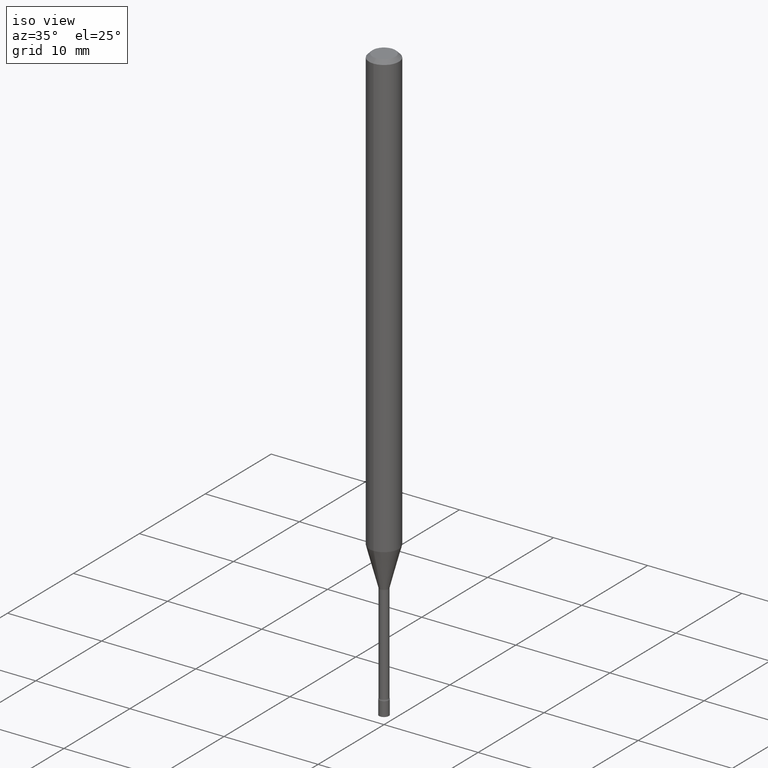
[diagram: clean part render]
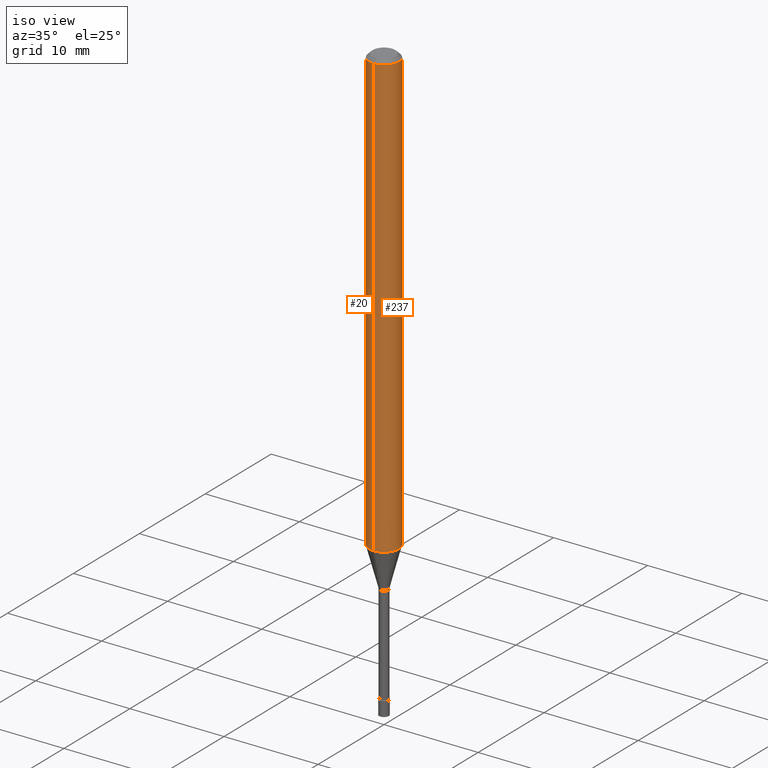
[diagram: same view with one multi-face feature highlighted, each face labeled with its STEP entity id]
A machine part, iso view. The highlighted faces form ONE feature: a constant-radius fillet chain: 2 tangent blend faces with common blend radius 1.5875 mm. The faces share edges in the B-rep.
Their STEP definitions:
[1] entity #20 (Cylinder):
#19 = CARTESIAN_POINT ( 'NONE',  ( -4.364351673553916201E-16, -0.06250000000000000000, 2.182215665883254699E-16 ) ) ;
#20 = ADVANCED_FACE ( 'NONE', ( #252 ), #133, .T. ) ;
#55 = AXIS2_PLACEMENT_3D ( 'NONE', #258, #253, #381 ) ;
#88 = ORIENTED_EDGE ( 'NONE', *, *, #248, .F. ) ;
#96 = LINE ( 'NONE', #284, #312 ) ;
#102 = DIRECTION ( 'NONE',  ( -2.445424306159104546E-29, 3.491545065413207519E-15, 1.000000000000000000 ) ) ;
#104 = VECTOR ( 'NONE', #494, 39.37007874015748143 ) ;
#133 = CYLINDRICAL_SURFACE ( 'NONE', #55, 0.06250000000000000000 ) ;
#147 = EDGE_LOOP ( 'NONE', ( #88, #304, #221, #279 ) ) ;
#150 = VERTEX_POINT ( 'NONE', #232 ) ;
#164 = DIRECTION ( 'NONE',  ( -2.445424306159104546E-29, 3.491545065413207519E-15, 1.000000000000000000 ) ) ;
#184 = AXIS2_PLACEMENT_3D ( 'NONE', #450, #294, #418 ) ;
#188 = VERTEX_POINT ( 'NONE', #269 ) ;
#196 = AXIS2_PLACEMENT_3D ( 'NONE', #416, #164, #205 ) ;
#205 = DIRECTION ( 'NONE',  ( -6.982962677686265922E-15, -1.000000000000000000, 3.483106191921935554E-15 ) ) ;
#217 = VERTEX_POINT ( 'NONE', #435 ) ;
#221 = ORIENTED_EDGE ( 'NONE', *, *, #448, .T. ) ;
#223 = CARTESIAN_POINT ( 'NONE',  ( 4.440892098501077785E-16, 0.06249999999999350520, -1.856909379709240637 ) ) ;
#232 = CARTESIAN_POINT ( 'NONE',  ( -4.364351673553912750E-16, -0.06250000000000005551, -0.01499999999999981209 ) ) ;
#248 = EDGE_CURVE ( 'NONE', #342, #188, #96, .T. ) ;
#252 = FACE_OUTER_BOUND ( 'NONE', #147, .T. ) ;
#253 = DIRECTION ( 'NONE',  ( -2.445424306159104546E-29, 3.491545065413207519E-15, 1.000000000000000000 ) ) ;
#258 = CARTESIAN_POINT ( 'NONE',  ( 0.000000000000000000, 0.000000000000000000, 0.000000000000000000 ) ) ;
#269 = CARTESIAN_POINT ( 'NONE',  ( 4.440892098501082715E-16, 0.06249999999999995143, -0.01500000000000024751 ) ) ;
#279 = ORIENTED_EDGE ( 'NONE', *, *, #451, .F. ) ;
#284 = CARTESIAN_POINT ( 'NONE',  ( 4.440892098500625669E-16, 0.06250000000000000000, -2.182215665883254699E-16 ) ) ;
#294 = DIRECTION ( 'NONE',  ( -2.445424306159104546E-29, 3.491545065413207519E-15, 1.000000000000000000 ) ) ;
#304 = ORIENTED_EDGE ( 'NONE', *, *, #395, .T. ) ;
#312 = VECTOR ( 'NONE', #102, 39.37007874015748143 ) ;
#342 = VERTEX_POINT ( 'NONE', #223 ) ;
#381 = DIRECTION ( 'NONE',  ( -6.982962677686265922E-15, -1.000000000000000000, 3.491545065413207519E-15 ) ) ;
#384 = LINE ( 'NONE', #19, #104 ) ;
#389 = CIRCLE ( 'NONE', #196, 0.06250000000000000000 ) ;
#395 = EDGE_CURVE ( 'NONE', #342, #217, #427, .T. ) ;
#416 = CARTESIAN_POINT ( 'NONE',  ( 3.668136459238664035E-31, -5.237317598119821879E-17, -0.01500000000000003067 ) ) ;
#418 = DIRECTION ( 'NONE',  ( -6.982962677686265922E-15, -1.000000000000000000, 4.370956789862821150E-15 ) ) ;
#427 = CIRCLE ( 'NONE', #184, 0.06250000000000000000 ) ;
#435 = CARTESIAN_POINT ( 'NONE',  ( -4.364351673553463099E-16, -0.06250000000000649480, -1.856909379709239971 ) ) ;
#448 = EDGE_CURVE ( 'NONE', #217, #150, #384, .T. ) ;
#450 = CARTESIAN_POINT ( 'NONE',  ( 4.540931331475802069E-29, -6.483482781643298717E-15, -1.856909379709240415 ) ) ;
#451 = EDGE_CURVE ( 'NONE', #188, #150, #389, .T. ) ;
#494 = DIRECTION ( 'NONE',  ( -2.445424306159104546E-29, 3.491545065413207519E-15, 1.000000000000000000 ) ) ;
[2] entity #237 (Cylinder):
#14 = AXIS2_PLACEMENT_3D ( 'NONE', #176, #213, #67 ) ;
#19 = CARTESIAN_POINT ( 'NONE',  ( -4.364351673553916201E-16, -0.06250000000000000000, 2.182215665883254699E-16 ) ) ;
#59 = EDGE_LOOP ( 'NONE', ( #464, #432, #259, #226 ) ) ;
#63 = CYLINDRICAL_SURFACE ( 'NONE', #14, 0.06250000000000000000 ) ;
#67 = DIRECTION ( 'NONE',  ( -6.982962677686265922E-15, -1.000000000000000000, 3.491545065413207519E-15 ) ) ;
#96 = LINE ( 'NONE', #284, #312 ) ;
#102 = DIRECTION ( 'NONE',  ( -2.445424306159104546E-29, 3.491545065413207519E-15, 1.000000000000000000 ) ) ;
#104 = VECTOR ( 'NONE', #494, 39.37007874015748143 ) ;
#114 = DIRECTION ( 'NONE',  ( -6.982962677686265922E-15, -1.000000000000000000, 3.483106191921935554E-15 ) ) ;
#118 = DIRECTION ( 'NONE',  ( -6.982962677686265922E-15, -1.000000000000000000, 4.370956789862821150E-15 ) ) ;
#150 = VERTEX_POINT ( 'NONE', #232 ) ;
#151 = CIRCLE ( 'NONE', #295, 0.06250000000000000000 ) ;
#176 = CARTESIAN_POINT ( 'NONE',  ( 0.000000000000000000, 0.000000000000000000, 0.000000000000000000 ) ) ;
#188 = VERTEX_POINT ( 'NONE', #269 ) ;
#213 = DIRECTION ( 'NONE',  ( -2.445424306159104546E-29, 3.491545065413207519E-15, 1.000000000000000000 ) ) ;
#217 = VERTEX_POINT ( 'NONE', #435 ) ;
#223 = CARTESIAN_POINT ( 'NONE',  ( 4.440892098501077785E-16, 0.06249999999999350520, -1.856909379709240637 ) ) ;
#226 = ORIENTED_EDGE ( 'NONE', *, *, #448, .F. ) ;
#232 = CARTESIAN_POINT ( 'NONE',  ( -4.364351673553912750E-16, -0.06250000000000005551, -0.01499999999999981209 ) ) ;
#233 = EDGE_CURVE ( 'NONE', #217, #342, #422, .T. ) ;
#237 = ADVANCED_FACE ( 'NONE', ( #244 ), #63, .T. ) ;
#244 = FACE_OUTER_BOUND ( 'NONE', #59, .T. ) ;
#248 = EDGE_CURVE ( 'NONE', #342, #188, #96, .T. ) ;
#259 = ORIENTED_EDGE ( 'NONE', *, *, #334, .F. ) ;
#269 = CARTESIAN_POINT ( 'NONE',  ( 4.440892098501082715E-16, 0.06249999999999995143, -0.01500000000000024751 ) ) ;
#270 = DIRECTION ( 'NONE',  ( -2.445424306159104546E-29, 3.491545065413207519E-15, 1.000000000000000000 ) ) ;
#284 = CARTESIAN_POINT ( 'NONE',  ( 4.440892098500625669E-16, 0.06250000000000000000, -2.182215665883254699E-16 ) ) ;
#295 = AXIS2_PLACEMENT_3D ( 'NONE', #425, #270, #114 ) ;
#312 = VECTOR ( 'NONE', #102, 39.37007874015748143 ) ;
#322 = CARTESIAN_POINT ( 'NONE',  ( 4.540931331475802069E-29, -6.483482781643298717E-15, -1.856909379709240415 ) ) ;
#334 = EDGE_CURVE ( 'NONE', #150, #188, #151, .T. ) ;
#342 = VERTEX_POINT ( 'NONE', #223 ) ;
#384 = LINE ( 'NONE', #19, #104 ) ;
#388 = AXIS2_PLACEMENT_3D ( 'NONE', #322, #476, #118 ) ;
#422 = CIRCLE ( 'NONE', #388, 0.06250000000000000000 ) ;
#425 = CARTESIAN_POINT ( 'NONE',  ( 3.668136459238664035E-31, -5.237317598119821879E-17, -0.01500000000000003067 ) ) ;
#432 = ORIENTED_EDGE ( 'NONE', *, *, #248, .T. ) ;
#435 = CARTESIAN_POINT ( 'NONE',  ( -4.364351673553463099E-16, -0.06250000000000649480, -1.856909379709239971 ) ) ;
#448 = EDGE_CURVE ( 'NONE', #217, #150, #384, .T. ) ;
#464 = ORIENTED_EDGE ( 'NONE', *, *, #233, .T. ) ;
#476 = DIRECTION ( 'NONE',  ( -2.445424306159104546E-29, 3.491545065413207519E-15, 1.000000000000000000 ) ) ;
#494 = DIRECTION ( 'NONE',  ( -2.445424306159104546E-29, 3.491545065413207519E-15, 1.000000000000000000 ) ) ;